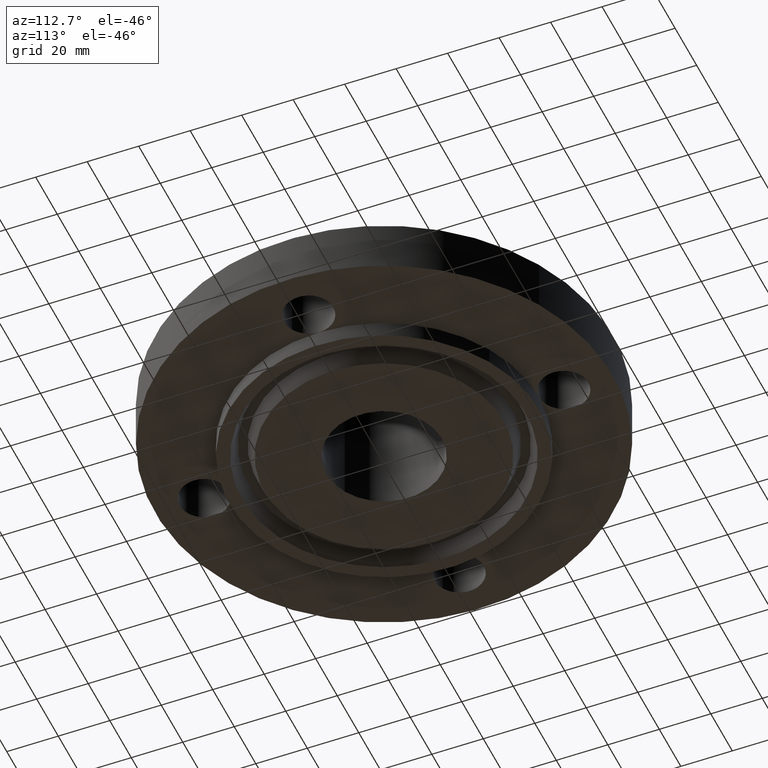
[diagram: clean part render]
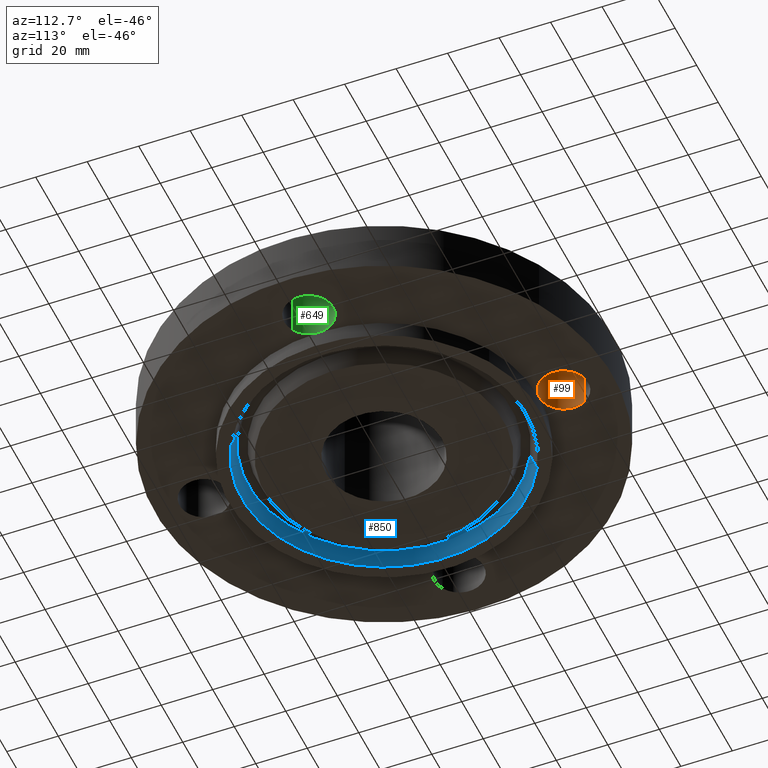
[diagram: same view with three faces highlighted in distinct colors, each labeled with its STEP entity id]
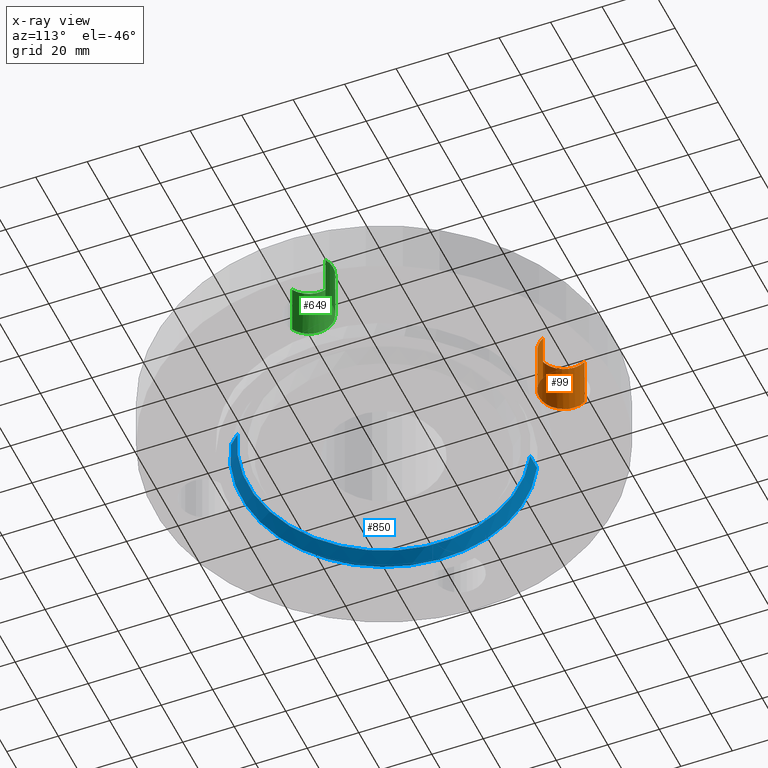
[diagram: x-ray of the same camera — body ghosted, the three highlighted faces saturated]
A machine part, auxiliary view with three faces highlighted in distinct colors.
The next image is the same camera in x-ray (body ghosted, the three faces saturated) — at least one of them is partly hidden behind the body in this view.
Their STEP definitions:

[orange] entity #99 — the highlighted cylindrical surface (edge-blend (fillet) strip) has radius 9.525 mm, axis along (0, -0, -1).
#38=AXIS2_PLACEMENT_3D('Cylinder Axis2P3D',#35,#36,#37) ;
#77=AXIS2_PLACEMENT_3D('Circle Axis2P3D',#75,#76,$) ;
#84=AXIS2_PLACEMENT_3D('Circle Axis2P3D',#82,#83,$) ;
#89=AXIS2_PLACEMENT_3D('Circle Axis2P3D',#87,#88,$) ;
#35=CARTESIAN_POINT('Axis2P3D Location',(0.,2.75000000001,0.806062992129)) ;
#40=CARTESIAN_POINT('Line Origine',(-0.32909346071,2.92978457699,0.405000000002)) ;
#44=CARTESIAN_POINT('Vertex',(-0.32909346071,2.92978457699,0.)) ;
#46=CARTESIAN_POINT('Vertex',(-0.32909346071,2.92978457699,0.810000000003)) ;
#53=CARTESIAN_POINT('Vertex',(0.32909346071,2.57021542303,0.)) ;
#56=CARTESIAN_POINT('Line Origine',(0.32909346071,2.57021542303,0.405000000002)) ;
#60=CARTESIAN_POINT('Vertex',(0.32909346071,2.57021542303,0.810000000003)) ;
#75=CARTESIAN_POINT('Axis2P3D Location',(0.,2.75000000001,0.)) ;
#79=CARTESIAN_POINT('Vertex',(-9.45568263898E-015,2.37500000001,2.79741234551E-016)) ;
#82=CARTESIAN_POINT('Axis2P3D Location',(0.,2.75000000001,0.)) ;
#87=CARTESIAN_POINT('Axis2P3D Location',(0.,2.75000000001,0.810000000003)) ;
#36=DIRECTION('Axis2P3D Direction',(0.,-0.,-0.0393700787402)) ;
#37=DIRECTION('Axis2P3D XDirection',(0.0345504945626,-0.0188750212049,0.)) ;
#41=DIRECTION('Vector Direction',(0.,0.,-0.0393700787402)) ;
#57=DIRECTION('Vector Direction',(0.,0.,-0.0393700787402)) ;
#76=DIRECTION('Axis2P3D Direction',(0.,-0.,-0.0393700787402)) ;
#83=DIRECTION('Axis2P3D Direction',(0.,-0.,-0.0393700787402)) ;
#88=DIRECTION('Axis2P3D Direction',(0.,-0.,-0.0393700787402)) ;
#42=VECTOR('Line Direction',#41,0.0393700787402) ;
#58=VECTOR('Line Direction',#57,0.0393700787402) ;
#93=ORIENTED_EDGE('',*,*,#62,.F.) ;
#94=ORIENTED_EDGE('',*,*,#81,.T.) ;
#95=ORIENTED_EDGE('',*,*,#86,.T.) ;
#96=ORIENTED_EDGE('',*,*,#48,.T.) ;
#97=ORIENTED_EDGE('',*,*,#91,.F.) ;
#99=ADVANCED_FACE('PartBody',(#98),#39,.F.) ;
#78=CIRCLE('generated circle',#77,0.375000000001) ;
#85=CIRCLE('generated circle',#84,0.375000000001) ;
#90=CIRCLE('generated circle',#89,0.375000000001) ;
#39=CYLINDRICAL_SURFACE('generated cylinder',#38,0.375000000001) ;
#48=EDGE_CURVE('',#45,#47,#43,.F.) ;
#62=EDGE_CURVE('',#54,#61,#59,.F.) ;
#81=EDGE_CURVE('',#54,#80,#78,.T.) ;
#86=EDGE_CURVE('',#80,#45,#85,.T.) ;
#91=EDGE_CURVE('',#61,#47,#90,.T.) ;
#92=EDGE_LOOP('',(#93,#94,#95,#96,#97)) ;
#98=FACE_OUTER_BOUND('',#92,.T.) ;
#43=LINE('Line',#40,#42) ;
#59=LINE('Line',#56,#58) ;
#45=VERTEX_POINT('',#44) ;
#47=VERTEX_POINT('',#46) ;
#54=VERTEX_POINT('',#53) ;
#61=VERTEX_POINT('',#60) ;
#80=VERTEX_POINT('',#79) ;

[blue] entity #850 — the highlighted conical surface has half-angle 23 deg.
#749=AXIS2_PLACEMENT_3D('Circle Axis2P3D',#747,#748,$) ;
#796=AXIS2_PLACEMENT_3D('Circle Axis2P3D',#794,#795,$) ;
#832=AXIS2_PLACEMENT_3D('Cone Axis2P3D',#829,#830,#831) ;
#747=CARTESIAN_POINT('Axis2P3D Location',(0.,-1.39870617276E-016,-0.250000000001)) ;
#751=CARTESIAN_POINT('Vertex',(1.04125234166,-1.90599962661,-0.250000000001)) ;
#753=CARTESIAN_POINT('Vertex',(-1.04125234166,1.90599962661,-0.250000000001)) ;
#794=CARTESIAN_POINT('Axis2P3D Location',(0.,0.,-0.0190396522348)) ;
#798=CARTESIAN_POINT('Vertex',(-0.994250971485,1.8199641956,-0.0190396522348)) ;
#800=CARTESIAN_POINT('Vertex',(0.994250971485,-1.8199641956,-0.0190396522348)) ;
#829=CARTESIAN_POINT('Axis2P3D Location',(0.,0.,-0.0190396522348)) ;
#834=CARTESIAN_POINT('Line Origine',(-1.01775165657,1.86298191111,-0.134519826118)) ;
#839=CARTESIAN_POINT('Line Origine',(1.01775165657,-1.86298191111,-0.134519826118)) ;
#748=DIRECTION('Axis2P3D Direction',(0.,0.,-0.0393700787402)) ;
#795=DIRECTION('Axis2P3D Direction',(0.,0.,0.0393700787402)) ;
#830=DIRECTION('Axis2P3D Direction',(-0.,-0.,-0.0393700787402)) ;
#831=DIRECTION('Axis2P3D XDirection',(-0.0188750212049,0.0345504945626,0.)) ;
#835=DIRECTION('Vector Direction',(-0.00737505833565,0.0134999537303,-0.0362403485611)) ;
#840=DIRECTION('Vector Direction',(0.00737505833565,-0.0134999537303,-0.0362403485611)) ;
#836=VECTOR('Line Direction',#835,0.0393700787402) ;
#841=VECTOR('Line Direction',#840,0.0393700787402) ;
#845=ORIENTED_EDGE('',*,*,#755,.T.) ;
#846=ORIENTED_EDGE('',*,*,#838,.T.) ;
#847=ORIENTED_EDGE('',*,*,#802,.T.) ;
#848=ORIENTED_EDGE('',*,*,#843,.F.) ;
#850=ADVANCED_FACE('PartBody',(#849),#833,.F.) ;
#750=CIRCLE('generated circle',#749,2.17187500001) ;
#797=CIRCLE('generated circle',#796,2.07383814884) ;
#833=CONICAL_SURFACE('Cone',#832,2.07383814884,0.401425727959) ;
#755=EDGE_CURVE('',#752,#754,#750,.T.) ;
#802=EDGE_CURVE('',#799,#801,#797,.T.) ;
#838=EDGE_CURVE('',#754,#799,#837,.F.) ;
#843=EDGE_CURVE('',#752,#801,#842,.F.) ;
#844=EDGE_LOOP('',(#845,#846,#847,#848)) ;
#849=FACE_OUTER_BOUND('',#844,.T.) ;
#837=LINE('Line',#834,#836) ;
#842=LINE('Line',#839,#841) ;
#752=VERTEX_POINT('',#751) ;
#754=VERTEX_POINT('',#753) ;
#799=VERTEX_POINT('',#798) ;
#801=VERTEX_POINT('',#800) ;

[green] entity #649 — the highlighted cylindrical surface (edge-blend (fillet) strip) has radius 9.525 mm, axis along (0, -0, -1).
#549=AXIS2_PLACEMENT_3D('Circle Axis2P3D',#547,#548,$) ;
#563=AXIS2_PLACEMENT_3D('Circle Axis2P3D',#561,#562,$) ;
#609=AXIS2_PLACEMENT_3D('Cylinder Axis2P3D',#606,#607,#608) ;
#639=AXIS2_PLACEMENT_3D('Circle Axis2P3D',#637,#638,$) ;
#495=CARTESIAN_POINT('Vertex',(2.37500000001,2.79741234551E-016,0.)) ;
#547=CARTESIAN_POINT('Axis2P3D Location',(2.75000000001,2.79741234551E-016,0.)) ;
#551=CARTESIAN_POINT('Vertex',(2.57021542303,-0.32909346071,0.)) ;
#558=CARTESIAN_POINT('Vertex',(2.92978457699,0.32909346071,0.)) ;
#561=CARTESIAN_POINT('Axis2P3D Location',(2.75000000001,2.79741234551E-016,0.)) ;
#606=CARTESIAN_POINT('Axis2P3D Location',(2.75000000001,1.68388934883E-016,0.806062992129)) ;
#611=CARTESIAN_POINT('Line Origine',(2.92978457699,0.32909346071,0.405000000002)) ;
#615=CARTESIAN_POINT('Vertex',(2.92978457699,0.32909346071,0.810000000003)) ;
#618=CARTESIAN_POINT('Line Origine',(2.57021542303,-0.32909346071,0.405000000002)) ;
#622=CARTESIAN_POINT('Vertex',(2.57021542303,-0.32909346071,0.810000000003)) ;
#637=CARTESIAN_POINT('Axis2P3D Location',(2.75000000001,1.68388934883E-016,0.810000000003)) ;
#548=DIRECTION('Axis2P3D Direction',(0.,0.,-0.0393700787402)) ;
#562=DIRECTION('Axis2P3D Direction',(0.,0.,-0.0393700787402)) ;
#607=DIRECTION('Axis2P3D Direction',(0.,-0.,-0.0393700787402)) ;
#608=DIRECTION('Axis2P3D XDirection',(-0.0188750212049,-0.0345504945626,0.)) ;
#612=DIRECTION('Vector Direction',(0.,0.,-0.0393700787402)) ;
#619=DIRECTION('Vector Direction',(0.,0.,-0.0393700787402)) ;
#638=DIRECTION('Axis2P3D Direction',(0.,-0.,-0.0393700787402)) ;
#613=VECTOR('Line Direction',#612,0.0393700787402) ;
#620=VECTOR('Line Direction',#619,0.0393700787402) ;
#643=ORIENTED_EDGE('',*,*,#624,.F.) ;
#644=ORIENTED_EDGE('',*,*,#553,.T.) ;
#645=ORIENTED_EDGE('',*,*,#565,.T.) ;
#646=ORIENTED_EDGE('',*,*,#617,.T.) ;
#647=ORIENTED_EDGE('',*,*,#641,.F.) ;
#649=ADVANCED_FACE('PartBody',(#648),#610,.F.) ;
#550=CIRCLE('generated circle',#549,0.375000000001) ;
#564=CIRCLE('generated circle',#563,0.375000000001) ;
#640=CIRCLE('generated circle',#639,0.375000000001) ;
#610=CYLINDRICAL_SURFACE('generated cylinder',#609,0.375000000001) ;
#553=EDGE_CURVE('',#552,#496,#550,.T.) ;
#565=EDGE_CURVE('',#496,#559,#564,.T.) ;
#617=EDGE_CURVE('',#559,#616,#614,.F.) ;
#624=EDGE_CURVE('',#552,#623,#621,.F.) ;
#641=EDGE_CURVE('',#623,#616,#640,.T.) ;
#642=EDGE_LOOP('',(#643,#644,#645,#646,#647)) ;
#648=FACE_OUTER_BOUND('',#642,.T.) ;
#614=LINE('Line',#611,#613) ;
#621=LINE('Line',#618,#620) ;
#496=VERTEX_POINT('',#495) ;
#552=VERTEX_POINT('',#551) ;
#559=VERTEX_POINT('',#558) ;
#616=VERTEX_POINT('',#615) ;
#623=VERTEX_POINT('',#622) ;